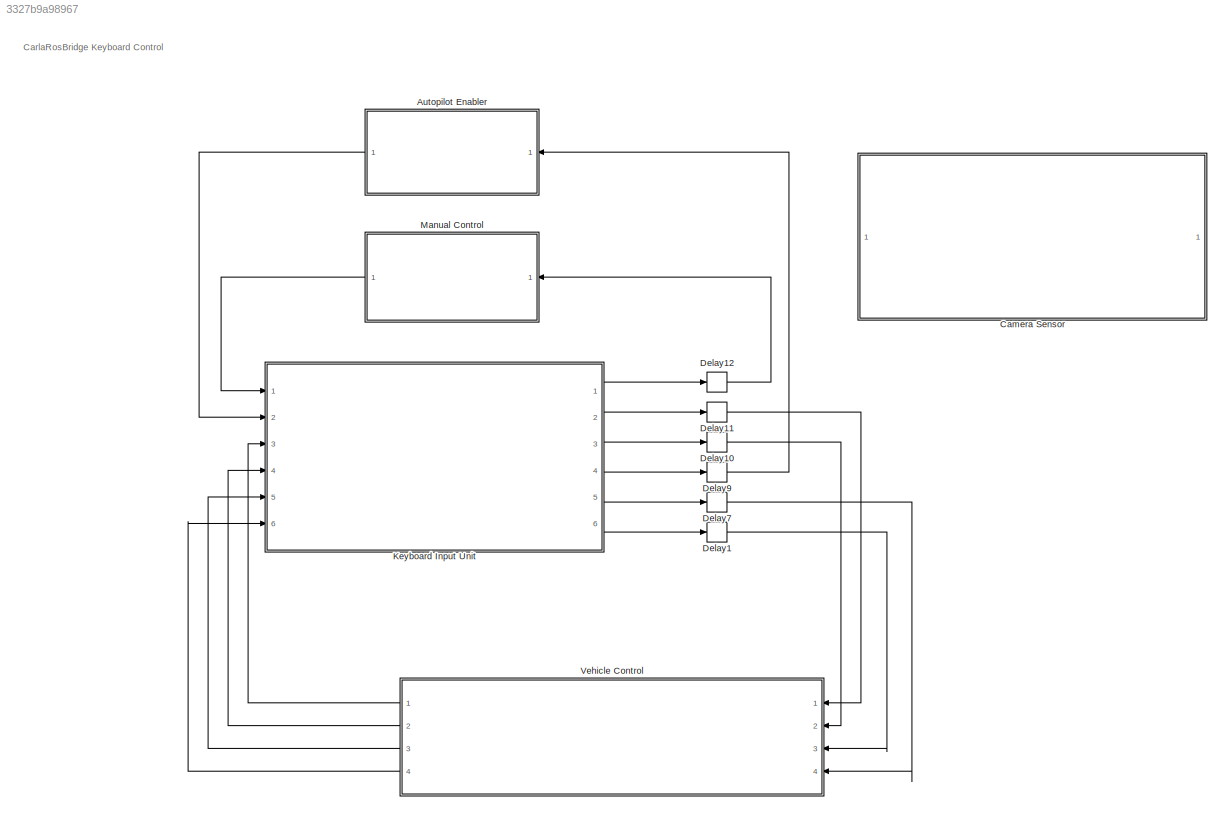
MODEL slx_3327b9a98967
KIND model
CONFIG AbsTol = auto
CONFIG EnableMultiTasking = on
CONFIG FixedStep = 0.2
CONFIG MaxStep = auto
CONFIG MinStep = auto
CONFIG RelTol = 1e-3
CONFIG SampleTimeConstraint = Unconstrained
CONFIG Solver = FixedStepAuto
CONFIG SolverName = FixedStepAuto
CONFIG StartTime = 0.0
CONFIG StopTime = inf
WORKSPACE source: mxarray member
WORKSPACE SL_ROS_VariableLengthArrays_MaxSizes: object (value not decoded)
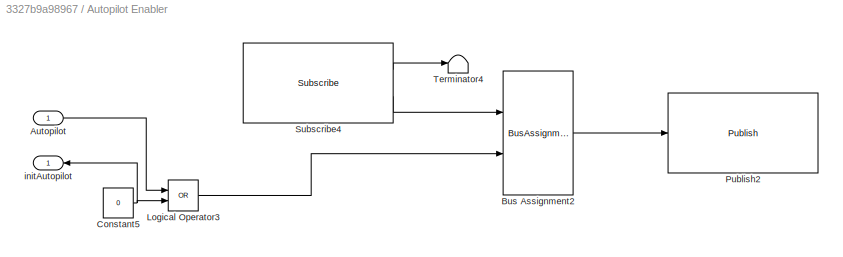
BLOCK [SubSystem] Autopilot Enabler
  Ports = [1, 1]
  RequestExecContextInheritance = off
BLOCK [Inport] Autopilot Enabler/Autopilot
  IconDisplay = Port number
BLOCK [BusAssignment] Autopilot Enabler/Bus Assignment2
  AssignedSignals = Data
  Ports = [2, 1]
BLOCK [Constant] Autopilot Enabler/Constant5
  OutDataTypeStr = boolean
  Value = 0
BLOCK [Logic] Autopilot Enabler/Logical Operator3
  AllPortsSameDT = off
  Operator = OR
  OutDataTypeStr = boolean
  Ports = [2, 1]
BLOCK [Reference] Autopilot Enabler/Publish2  REF=robotlib/Publish
  Ports = [1]
  SourceBlock = robotlib/Publish
  SourceProductBaseCode = RR
  SourceProductName = ROS Toolbox
  SourceType = ROS Publish
BLOCK [Reference] Autopilot Enabler/Subscribe4  REF=robotlib/Subscribe
  Ports = [0, 2]
  SourceBlock = robotlib/Subscribe
  SourceProductBaseCode = RR
  SourceProductName = ROS Toolbox
  SourceType = ROS Subscribe
BLOCK [Terminator] Autopilot Enabler/Terminator4
BLOCK [Outport] Autopilot Enabler/initAutopilot
  IconDisplay = Port number
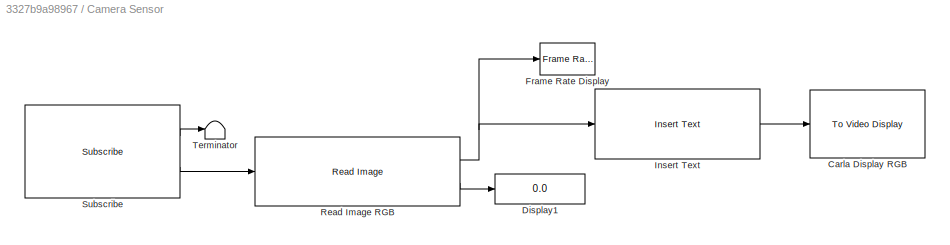
BLOCK [SubSystem] Camera Sensor
  Ports = []
  RequestExecContextInheritance = off
BLOCK [Reference] Camera Sensor/Carla Display RGB  REF=visionsinks/To Video Display
  Ports = [1]
  SourceBlock = visionsinks/To Video Display
  SourceProductBaseCode = VP
  SourceProductName = Computer Vision Toolbox
  SourceType = To Video Display
BLOCK [Display] Camera Sensor/Display1
  Decimation = 1
  Ports = [1]
BLOCK [Reference] Camera Sensor/Frame Rate Display  REF=visionsinks/Frame Rate
Display
  Ports = [1]
  SourceBlock = visionsinks/Frame Rate\nDisplay
  SourceProductBaseCode = VP
  SourceProductName = Computer Vision Toolbox
  SourceType = Frame Rate Display
BLOCK [Reference] Camera Sensor/Insert Text  REF=visiontextngfix/Insert Text
  Ports = [1, 1]
  SourceBlock = visiontextngfix/Insert Text
  SourceProductBaseCode = VP
  SourceProductName = Computer Vision Toolbox
  SourceType = Insert Text
BLOCK [Reference] Camera Sensor/Read Image RGB  REF=robotlib/Read Image
  Ports = [1, 2]
  SourceBlock = robotlib/Read Image
  SourceProductBaseCode = RO
  SourceProductName = Robotics System Toolbox
  SourceType = ros.slros.internal.block.ReadImage
BLOCK [Reference] Camera Sensor/Subscribe  REF=robotlib/Subscribe
  Ports = [0, 2]
  SourceBlock = robotlib/Subscribe
  SourceProductBaseCode = RO
  SourceProductName = Robotics System Toolbox
  SourceType = ROS Subscribe
BLOCK [Terminator] Camera Sensor/Terminator
BLOCK [Delay] Delay1
  DelayLength = 1
  InitialCondition = 0
  InputPortMap = u0
  Ports = [1, 1]
BLOCK [Delay] Delay10
  DelayLength = 1
  InitialCondition = 0
  InputPortMap = u0
  Ports = [1, 1]
BLOCK [Delay] Delay11
  DelayLength = 1
  InitialCondition = 0
  InputPortMap = u0
  Ports = [1, 1]
BLOCK [Delay] Delay12
  DelayLength = 1
  InitialCondition = 0
  InputPortMap = u0
  Ports = [1, 1]
BLOCK [Delay] Delay7
  DelayLength = 1
  InitialCondition = 0
  InputPortMap = u0
  Ports = [1, 1]
BLOCK [Delay] Delay9
  DelayLength = 1
  InitialCondition = 0
  InputPortMap = u0
  Ports = [1, 1]
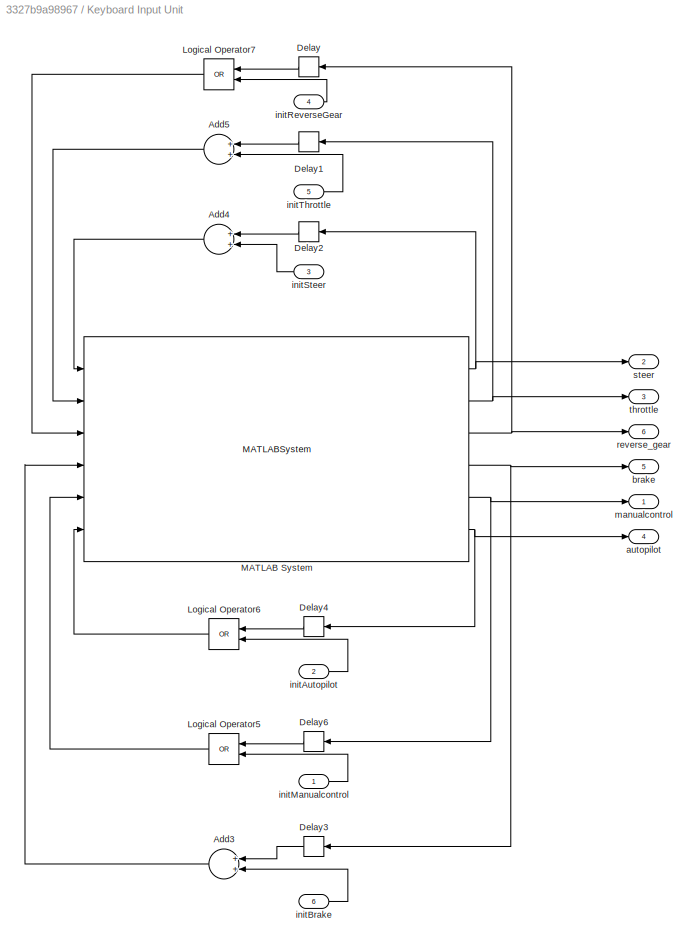
BLOCK [SubSystem] Keyboard Input Unit
  Ports = [6, 6]
  RequestExecContextInheritance = off
BLOCK [Sum] Keyboard Input Unit/Add3
  InputSameDT = off
  OutDataTypeStr = Inherit: Inherit via internal rule
  Ports = [2, 1]
  SaturateOnIntegerOverflow = off
BLOCK [Sum] Keyboard Input Unit/Add4
  InputSameDT = off
  OutDataTypeStr = Inherit: Inherit via internal rule
  Ports = [2, 1]
  SaturateOnIntegerOverflow = off
BLOCK [Sum] Keyboard Input Unit/Add5
  InputSameDT = off
  OutDataTypeStr = Inherit: Inherit via internal rule
  Ports = [2, 1]
  SaturateOnIntegerOverflow = off
BLOCK [Delay] Keyboard Input Unit/Delay
  DelayLength = 1
  InitialCondition = 0
  InputPortMap = u0
  Ports = [1, 1]
BLOCK [Delay] Keyboard Input Unit/Delay1
  DelayLength = 1
  InitialCondition = 0
  InputPortMap = u0
  Ports = [1, 1]
BLOCK [Delay] Keyboard Input Unit/Delay2
  DelayLength = 1
  InitialCondition = 0
  InputPortMap = u0
  Ports = [1, 1]
BLOCK [Delay] Keyboard Input Unit/Delay3
  DelayLength = 1
  InitialCondition = 0
  InputPortMap = u0
  Ports = [1, 1]
BLOCK [Delay] Keyboard Input Unit/Delay4
  DelayLength = 1
  InitialCondition = 0
  InputPortMap = u0
  Ports = [1, 1]
BLOCK [Delay] Keyboard Input Unit/Delay6
  DelayLength = 1
  InitialCondition = 0
  InputPortMap = u0
  Ports = [1, 1]
BLOCK [Logic] Keyboard Input Unit/Logical Operator5
  AllPortsSameDT = off
  Operator = OR
  OutDataTypeStr = boolean
  Ports = [2, 1]
BLOCK [Logic] Keyboard Input Unit/Logical Operator6
  AllPortsSameDT = off
  Operator = OR
  OutDataTypeStr = boolean
  Ports = [2, 1]
BLOCK [Logic] Keyboard Input Unit/Logical Operator7
  AllPortsSameDT = off
  Operator = OR
  OutDataTypeStr = boolean
  Ports = [2, 1]
BLOCK [MATLABSystem] Keyboard Input Unit/MATLAB System
  MaskDisplay = disp('KeyboardControl');\nport_label('input',1,'steer_prev');\nport_label('input',2,'throttle_prev');\nport_label('input',3,'reverse_gear_prev');\nport_label('input',4,'brake_prev');\nport_label('input',5,'manualcontrol_prev');\nport_label('input',6,'autopilot_prev');\nport_label('output',1,'steer');\nport_label('output',2,'throttle');\nport_label('output',3,'reverse_gear');\nport_label('output',4,'brake');...<+76ch>
  MaskType = KeyboardControl
  Ports = [6, 6]
  SimulateUsing = Interpreted execution
  System = KeyboardControl
BLOCK [Outport] Keyboard Input Unit/autopilot
  IconDisplay = Port number
  Port = 4
BLOCK [Outport] Keyboard Input Unit/brake
  IconDisplay = Port number
  Port = 5
BLOCK [Inport] Keyboard Input Unit/initAutopilot
  IconDisplay = Port number
  Port = 2
BLOCK [Inport] Keyboard Input Unit/initBrake
  IconDisplay = Port number
  Port = 6
BLOCK [Inport] Keyboard Input Unit/initManualcontrol
  IconDisplay = Port number
BLOCK [Inport] Keyboard Input Unit/initReverseGear
  IconDisplay = Port number
  Port = 4
BLOCK [Inport] Keyboard Input Unit/initSteer
  IconDisplay = Port number
  Port = 3
BLOCK [Inport] Keyboard Input Unit/initThrottle
  IconDisplay = Port number
  Port = 5
BLOCK [Outport] Keyboard Input Unit/manualcontrol
  IconDisplay = Port number
BLOCK [Outport] Keyboard Input Unit/reverse_gear
  IconDisplay = Port number
  Port = 6
BLOCK [Outport] Keyboard Input Unit/steer
  IconDisplay = Port number
  Port = 2
BLOCK [Outport] Keyboard Input Unit/throttle
  IconDisplay = Port number
  Port = 3
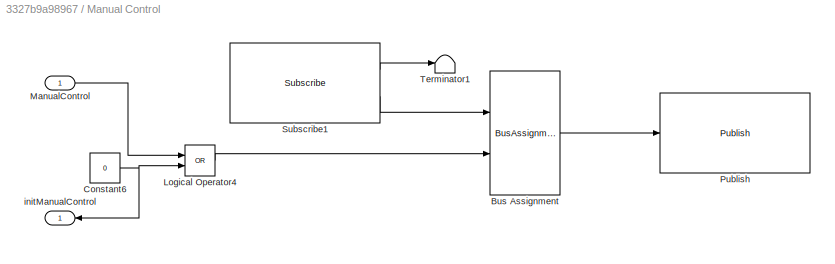
BLOCK [SubSystem] Manual Control
  Ports = [1, 1]
  RequestExecContextInheritance = off
BLOCK [BusAssignment] Manual Control/Bus Assignment
  AssignedSignals = Data
  Ports = [2, 1]
BLOCK [Constant] Manual Control/Constant6
  OutDataTypeStr = boolean
  Value = 0
BLOCK [Logic] Manual Control/Logical Operator4
  AllPortsSameDT = off
  Operator = OR
  OutDataTypeStr = boolean
  Ports = [2, 1]
BLOCK [Inport] Manual Control/ManualControl
  IconDisplay = Port number
BLOCK [Reference] Manual Control/Publish  REF=robotlib/Publish
  Ports = [1]
  SourceBlock = robotlib/Publish
  SourceProductBaseCode = RR
  SourceProductName = ROS Toolbox
  SourceType = ROS Publish
BLOCK [Reference] Manual Control/Subscribe1  REF=robotlib/Subscribe
  Ports = [0, 2]
  SourceBlock = robotlib/Subscribe
  SourceProductBaseCode = RR
  SourceProductName = ROS Toolbox
  SourceType = ROS Subscribe
BLOCK [Terminator] Manual Control/Terminator1
BLOCK [Outport] Manual Control/initManualControl
  IconDisplay = Port number
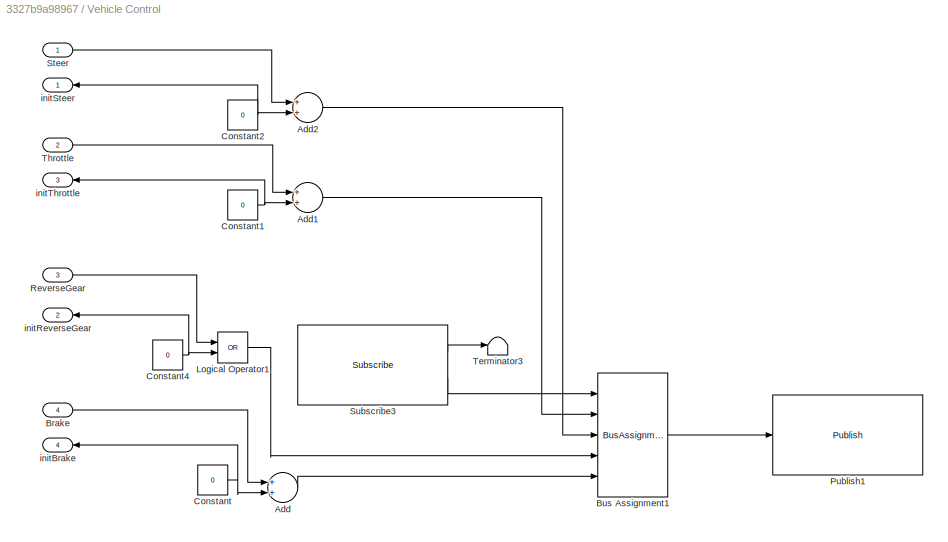
BLOCK [SubSystem] Vehicle Control
  Ports = [4, 4]
  RequestExecContextInheritance = off
BLOCK [Sum] Vehicle Control/Add
  InputSameDT = off
  OutDataTypeStr = Inherit: Inherit via internal rule
  Ports = [2, 1]
  SaturateOnIntegerOverflow = off
BLOCK [Sum] Vehicle Control/Add1
  InputSameDT = off
  OutDataTypeStr = Inherit: Inherit via internal rule
  Ports = [2, 1]
  SaturateOnIntegerOverflow = off
BLOCK [Sum] Vehicle Control/Add2
  InputSameDT = off
  OutDataTypeStr = Inherit: Inherit via internal rule
  Ports = [2, 1]
  SaturateOnIntegerOverflow = off
BLOCK [Inport] Vehicle Control/Brake
  IconDisplay = Port number
  Port = 4
BLOCK [BusAssignment] Vehicle Control/Bus Assignment1
  AssignedSignals = Throttle,Steer,Reverse,Brake
  Ports = [5, 1]
BLOCK [Constant] Vehicle Control/Constant
  OutDataTypeStr = single
  Value = 0
BLOCK [Constant] Vehicle Control/Constant1
  OutDataTypeStr = single
  Value = 0
BLOCK [Constant] Vehicle Control/Constant2
  OutDataTypeStr = single
  Value = 0
BLOCK [Constant] Vehicle Control/Constant4
  OutDataTypeStr = boolean
  Value = 0
BLOCK [Logic] Vehicle Control/Logical Operator1
  AllPortsSameDT = off
  Operator = OR
  OutDataTypeStr = boolean
  Ports = [2, 1]
BLOCK [Reference] Vehicle Control/Publish1  REF=robotlib/Publish
  Ports = [1]
  SourceBlock = robotlib/Publish
  SourceProductBaseCode = RR
  SourceProductName = ROS Toolbox
  SourceType = ROS Publish
BLOCK [Inport] Vehicle Control/ReverseGear
  IconDisplay = Port number
  Port = 3
BLOCK [Inport] Vehicle Control/Steer
  IconDisplay = Port number
BLOCK [Reference] Vehicle Control/Subscribe3  REF=robotlib/Subscribe
  Ports = [0, 2]
  SourceBlock = robotlib/Subscribe
  SourceProductBaseCode = RR
  SourceProductName = ROS Toolbox
  SourceType = ROS Subscribe
BLOCK [Terminator] Vehicle Control/Terminator3
BLOCK [Inport] Vehicle Control/Throttle
  IconDisplay = Port number
  Port = 2
BLOCK [Outport] Vehicle Control/initBrake
  IconDisplay = Port number
  Port = 4
BLOCK [Outport] Vehicle Control/initReverseGear
  IconDisplay = Port number
  Port = 2
BLOCK [Outport] Vehicle Control/initSteer
  IconDisplay = Port number
BLOCK [Outport] Vehicle Control/initThrottle
  IconDisplay = Port number
  Port = 3
ANNOTATION (root): CarlaRosBridge Keyboard Control
LINE Autopilot Enabler/Autopilot:1 -> Autopilot Enabler/Logical Operator3:1
LINE Autopilot Enabler/Bus Assignment2:1 -> Autopilot Enabler/Publish2:1
NET Autopilot Enabler/Constant5:1 -> Autopilot Enabler/Logical Operator3:2, Autopilot Enabler/initAutopilot:1
LINE Autopilot Enabler/Logical Operator3:1 -> Autopilot Enabler/Bus Assignment2:2
LINE Autopilot Enabler/Subscribe4:1 -> Autopilot Enabler/Terminator4:1
LINE Autopilot Enabler/Subscribe4:2 -> Autopilot Enabler/Bus Assignment2:1
LINE Autopilot Enabler:1 -> Keyboard Input Unit:2
LINE Camera Sensor/Insert Text:1 -> Camera Sensor/Carla Display RGB:1
NET Camera Sensor/Read Image RGB:1 -> Camera Sensor/Frame Rate Display:1, Camera Sensor/Insert Text:1
LINE Camera Sensor/Read Image RGB:2 -> Camera Sensor/Display1:1
LINE Camera Sensor/Subscribe:1 -> Camera Sensor/Terminator:1
LINE Camera Sensor/Subscribe:2 -> Camera Sensor/Read Image RGB:1
LINE Delay10:1 -> Vehicle Control:2
LINE Delay11:1 -> Vehicle Control:1
LINE Delay12:1 -> Manual Control:1
LINE Delay1:1 -> Vehicle Control:3
LINE Delay7:1 -> Vehicle Control:4
LINE Delay9:1 -> Autopilot Enabler:1
LINE Keyboard Input Unit/Add3:1 -> Keyboard Input Unit/MATLAB System:4
LINE Keyboard Input Unit/Add4:1 -> Keyboard Input Unit/MATLAB System:1
LINE Keyboard Input Unit/Add5:1 -> Keyboard Input Unit/MATLAB System:2
LINE Keyboard Input Unit/Delay1:1 -> Keyboard Input Unit/Add5:1
LINE Keyboard Input Unit/Delay2:1 -> Keyboard Input Unit/Add4:1
LINE Keyboard Input Unit/Delay3:1 -> Keyboard Input Unit/Add3:1
LINE Keyboard Input Unit/Delay4:1 -> Keyboard Input Unit/Logical Operator6:1
LINE Keyboard Input Unit/Delay6:1 -> Keyboard Input Unit/Logical Operator5:1
LINE Keyboard Input Unit/Delay:1 -> Keyboard Input Unit/Logical Operator7:1
LINE Keyboard Input Unit/Logical Operator5:1 -> Keyboard Input Unit/MATLAB System:5
LINE Keyboard Input Unit/Logical Operator6:1 -> Keyboard Input Unit/MATLAB System:6
LINE Keyboard Input Unit/Logical Operator7:1 -> Keyboard Input Unit/MATLAB System:3
NET Keyboard Input Unit/MATLAB System:1 -> Keyboard Input Unit/Delay2:1, Keyboard Input Unit/steer:1
NET Keyboard Input Unit/MATLAB System:2 -> Keyboard Input Unit/Delay1:1, Keyboard Input Unit/throttle:1
NET Keyboard Input Unit/MATLAB System:3 -> Keyboard Input Unit/Delay:1, Keyboard Input Unit/reverse_gear:1
NET Keyboard Input Unit/MATLAB System:4 -> Keyboard Input Unit/Delay3:1, Keyboard Input Unit/brake:1
NET Keyboard Input Unit/MATLAB System:5 -> Keyboard Input Unit/Delay6:1, Keyboard Input Unit/manualcontrol:1
NET Keyboard Input Unit/MATLAB System:6 -> Keyboard Input Unit/Delay4:1, Keyboard Input Unit/autopilot:1
LINE Keyboard Input Unit/initAutopilot:1 -> Keyboard Input Unit/Logical Operator6:2
LINE Keyboard Input Unit/initBrake:1 -> Keyboard Input Unit/Add3:2
LINE Keyboard Input Unit/initManualcontrol:1 -> Keyboard Input Unit/Logical Operator5:2
LINE Keyboard Input Unit/initReverseGear:1 -> Keyboard Input Unit/Logical Operator7:2
LINE Keyboard Input Unit/initSteer:1 -> Keyboard Input Unit/Add4:2
LINE Keyboard Input Unit/initThrottle:1 -> Keyboard Input Unit/Add5:2
LINE Keyboard Input Unit:1 -> Delay12:1
LINE Keyboard Input Unit:2 -> Delay11:1
LINE Keyboard Input Unit:3 -> Delay10:1
LINE Keyboard Input Unit:4 -> Delay9:1
LINE Keyboard Input Unit:5 -> Delay7:1
LINE Keyboard Input Unit:6 -> Delay1:1
LINE Manual Control/Bus Assignment:1 -> Manual Control/Publish:1
NET Manual Control/Constant6:1 -> Manual Control/Logical Operator4:2, Manual Control/initManualControl:1
LINE Manual Control/Logical Operator4:1 -> Manual Control/Bus Assignment:2
LINE Manual Control/ManualControl:1 -> Manual Control/Logical Operator4:1
LINE Manual Control/Subscribe1:1 -> Manual Control/Terminator1:1
LINE Manual Control/Subscribe1:2 -> Manual Control/Bus Assignment:1
LINE Manual Control:1 -> Keyboard Input Unit:1
LINE Vehicle Control/Add1:1 -> Vehicle Control/Bus Assignment1:2
LINE Vehicle Control/Add2:1 -> Vehicle Control/Bus Assignment1:3
LINE Vehicle Control/Add:1 -> Vehicle Control/Bus Assignment1:5
LINE Vehicle Control/Brake:1 -> Vehicle Control/Add:1
LINE Vehicle Control/Bus Assignment1:1 -> Vehicle Control/Publish1:1
NET Vehicle Control/Constant1:1 -> Vehicle Control/Add1:2, Vehicle Control/initThrottle:1
NET Vehicle Control/Constant2:1 -> Vehicle Control/Add2:2, Vehicle Control/initSteer:1
NET Vehicle Control/Constant4:1 -> Vehicle Control/Logical Operator1:2, Vehicle Control/initReverseGear:1
NET Vehicle Control/Constant:1 -> Vehicle Control/Add:2, Vehicle Control/initBrake:1
LINE Vehicle Control/Logical Operator1:1 -> Vehicle Control/Bus Assignment1:4
LINE Vehicle Control/ReverseGear:1 -> Vehicle Control/Logical Operator1:1
LINE Vehicle Control/Steer:1 -> Vehicle Control/Add2:1
LINE Vehicle Control/Subscribe3:1 -> Vehicle Control/Terminator3:1
LINE Vehicle Control/Subscribe3:2 -> Vehicle Control/Bus Assignment1:1
LINE Vehicle Control/Throttle:1 -> Vehicle Control/Add1:1
LINE Vehicle Control:1 -> Keyboard Input Unit:3
LINE Vehicle Control:2 -> Keyboard Input Unit:4
LINE Vehicle Control:3 -> Keyboard Input Unit:5
LINE Vehicle Control:4 -> Keyboard Input Unit:6
note: NET lines group one-source signal fan-out (src -> all destinations, sorted); 1:1 wires keep LINE
